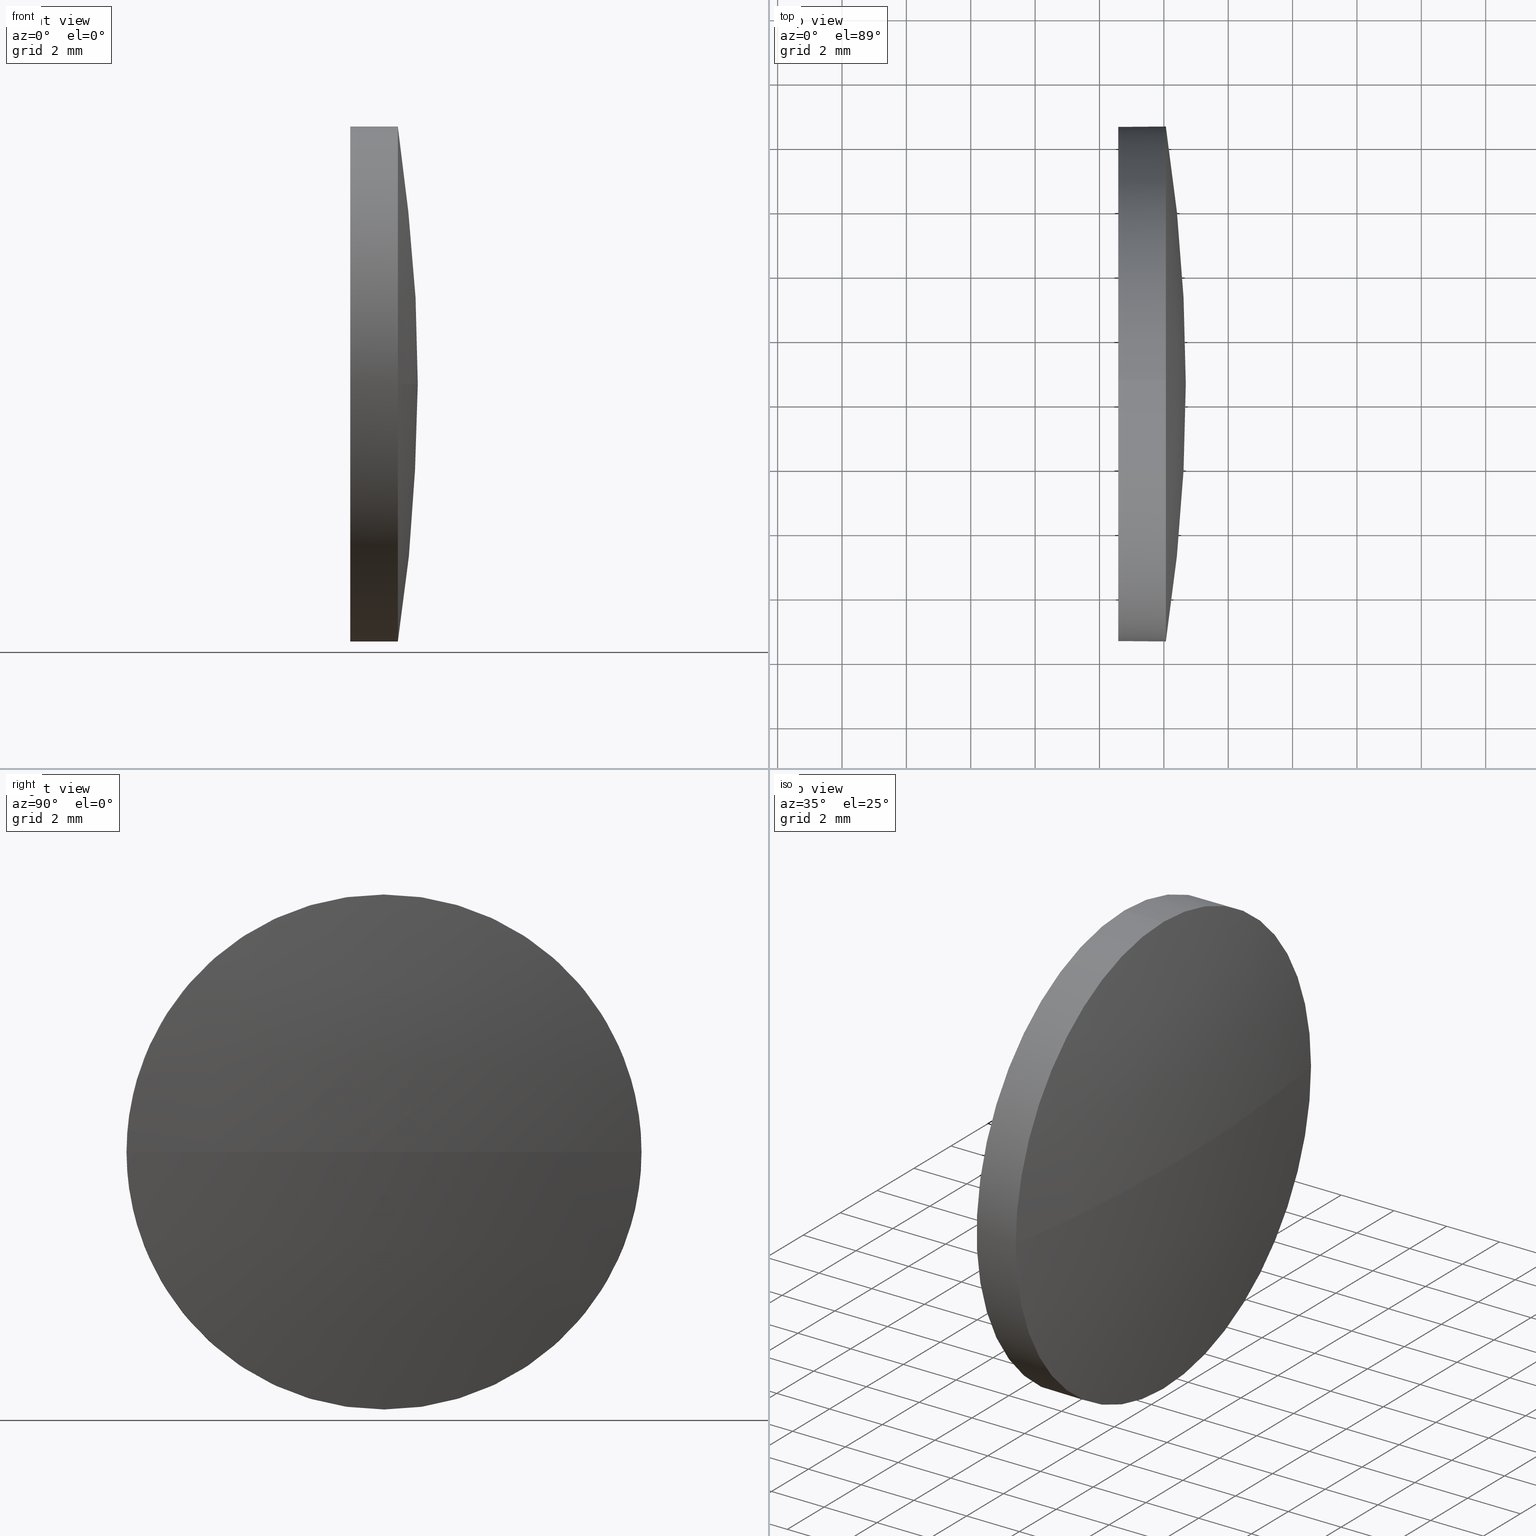
[diagram: canonical four-view strip — front | top / right | iso, engineering-drawing reading convention]
A machine part, canonical four-view strip (front | top / right | iso — engineering-drawing reading convention). The complete STEP part file that produces these views, byte-faithful:
ISO-10303-21;
HEADER;
FILE_DESCRIPTION (( 'STEP AP214' ),
    '1' );
FILE_NAME ('100204.STEP',
    '2019-05-22T07:34:56',
    ( '' ),
    ( '' ),
    'SwSTEP 2.0',
    'SolidWorks 2016',
    '' );
FILE_SCHEMA (( 'AUTOMOTIVE_DESIGN' ));
ENDSEC;

DATA;
#1 =( NAMED_UNIT ( * ) SI_UNIT ( $, .STERADIAN. ) SOLID_ANGLE_UNIT ( ) );
#2 = AXIS2_PLACEMENT_3D ( 'NONE', #72, #83, #22 ) ;
#3 = CARTESIAN_POINT ( 'NONE',  ( 410.7592352837468800, 156.5683746678373000, 0.0000000000000000000 ) ) ;
#4 = EDGE_LOOP ( 'NONE', ( #104, #123, #32, #55, #110 ) ) ;
#5 =( NAMED_UNIT ( * ) PLANE_ANGLE_UNIT ( ) SI_UNIT ( $, .RADIAN. ) );
#6 = LINE ( 'NONE', #92, #36 ) ;
#7 = CARTESIAN_POINT ( 'NONE',  ( 462.0621385095531700, 148.5683746678372800, -9.797174393178857200E-016 ) ) ;
#8 = CARTESIAN_POINT ( 'NONE',  ( 462.6821385095531700, 156.5683746678373000, 0.0000000000000000000 ) ) ;
#9 = CIRCLE ( 'NONE', #56, 8.000000000000007100 ) ;
#10 = VERTEX_POINT ( 'NONE', #7 ) ;
#11 = DIRECTION ( 'NONE',  ( -1.000000000000000000, -0.0000000000000000000, -0.0000000000000000000 ) ) ;
#12 = CARTESIAN_POINT ( 'NONE',  ( 458.9341660365616900, 156.5683746678373000, 0.0000000000000000000 ) ) ;
#13 = CARTESIAN_POINT ( 'NONE',  ( 462.0621385095531700, 156.5683746678373000, 0.0000000000000000000 ) ) ;
#14 = MANIFOLD_SOLID_BREP ( '��ת1', #43 ) ;
#15 = AXIS2_PLACEMENT_3D ( 'NONE', #3, #33, #47 ) ;
#16 = SPHERICAL_SURFACE ( 'NONE', #178, 51.92290322580633700 ) ;
#17 = PRODUCT_DEFINITION_CONTEXT ( 'detailed design', #127, 'design' ) ;
#18 = APPLICATION_PROTOCOL_DEFINITION ( 'draft international standard', 'automotive_design', 1998, #171 ) ;
#19 =( LENGTH_UNIT ( ) NAMED_UNIT ( * ) SI_UNIT ( .MILLI., .METRE. ) );
#20 = ORIENTED_EDGE ( 'NONE', *, *, #142, .T. ) ;
#21 = PRODUCT_CONTEXT ( 'NONE', #171, 'mechanical' ) ;
#22 = DIRECTION ( 'NONE',  ( 0.0000000000000000000, 0.0000000000000000000, 1.000000000000000000 ) ) ;
#23 = DIRECTION ( 'NONE',  ( 0.0000000000000000000, 1.224646799147353200E-016, -1.000000000000000000 ) ) ;
#24 = VERTEX_POINT ( 'NONE', #8 ) ;
#25 = CARTESIAN_POINT ( 'NONE',  ( 458.9341660365616900, 156.5683746678373000, 0.0000000000000000000 ) ) ;
#26 = ADVANCED_FACE ( 'NONE', ( #102 ), #162, .T. ) ;
#27 = PRODUCT ( '100204', '100204', '', ( #21 ) ) ;
#28 = DIRECTION ( 'NONE',  ( -0.0000000000000000000, 0.0000000000000000000, -1.000000000000000000 ) ) ;
#29 = EDGE_CURVE ( 'NONE', #176, #143, #70, .T. ) ;
#30 = PRODUCT_RELATED_PRODUCT_CATEGORY ( 'part', '', ( #27 ) ) ;
#31 = PRESENTATION_LAYER_ASSIGNMENT (  '', '', ( #106 ) ) ;
#32 = ORIENTED_EDGE ( 'NONE', *, *, #142, .F. ) ;
#33 = DIRECTION ( 'NONE',  ( -0.0000000000000000000, 0.0000000000000000000, 1.000000000000000000 ) ) ;
#34 = SURFACE_STYLE_USAGE ( .BOTH. , #114 ) ;
#35 = VERTEX_POINT ( 'NONE', #181 ) ;
#36 = VECTOR ( 'NONE', #71, 1000.000000000000000 ) ;
#37 = AXIS2_PLACEMENT_3D ( 'NONE', #25, #48, #155 ) ;
#38 = CARTESIAN_POINT ( 'NONE',  ( 460.5821385095532000, 156.5683746678373000, 0.0000000000000000000 ) ) ;
#39 = DIRECTION ( 'NONE',  ( 0.0000000000000000000, 1.000000000000000000, 0.0000000000000000000 ) ) ;
#40 = CIRCLE ( 'NONE', #137, 8.000000000000007100 ) ;
#41 = CIRCLE ( 'NONE', #93, 8.000000000000007100 ) ;
#42 = FACE_OUTER_BOUND ( 'NONE', #185, .T. ) ;
#43 = CLOSED_SHELL ( 'NONE', ( #26, #119, #138, #81, #97 ) ) ;
#44 = SHAPE_DEFINITION_REPRESENTATION ( #80, #77 ) ;
#45 = DIRECTION ( 'NONE',  ( 0.0000000000000000000, 1.000000000000000000, 1.224646799147353200E-016 ) ) ;
#46 = CYLINDRICAL_SURFACE ( 'NONE', #103, 8.000000000000007100 ) ;
#47 = DIRECTION ( 'NONE',  ( 1.000000000000000000, 0.0000000000000000000, 0.0000000000000000000 ) ) ;
#48 = DIRECTION ( 'NONE',  ( -1.000000000000000000, -0.0000000000000000000, -0.0000000000000000000 ) ) ;
#49 = MECHANICAL_DESIGN_GEOMETRIC_PRESENTATION_REPRESENTATION (  '', ( #106 ), #109 ) ;
#50 = FACE_OUTER_BOUND ( 'NONE', #129, .T. ) ;
#51 = DIRECTION ( 'NONE',  ( 0.0000000000000000000, 0.0000000000000000000, 1.000000000000000000 ) ) ;
#52 = CARTESIAN_POINT ( 'NONE',  ( 460.5821385095532000, 156.5683746678373000, 8.000000000000007100 ) ) ;
#53 = MECHANICAL_DESIGN_GEOMETRIC_PRESENTATION_REPRESENTATION (  '', ( #169 ), #154 ) ;
#54 = PRESENTATION_STYLE_ASSIGNMENT (( #34 ) ) ;
#55 = ORIENTED_EDGE ( 'NONE', *, *, #175, .F. ) ;
#56 = AXIS2_PLACEMENT_3D ( 'NONE', #141, #11, #51 ) ;
#57 = ORIENTED_EDGE ( 'NONE', *, *, #29, .F. ) ;
#58 = ORIENTED_EDGE ( 'NONE', *, *, #175, .T. ) ;
#59 = DIRECTION ( 'NONE',  ( 1.000000000000000000, 0.0000000000000000000, 0.0000000000000000000 ) ) ;
#60 = DIRECTION ( 'NONE',  ( 0.0000000000000000000, 0.0000000000000000000, 1.000000000000000000 ) ) ;
#61 = SURFACE_STYLE_USAGE ( .BOTH. , #130 ) ;
#62 = ORIENTED_EDGE ( 'NONE', *, *, #160, .F. ) ;
#63 = COLOUR_RGB ( '',1.000000000000000000, 1.000000000000000000, 1.000000000000000000 ) ;
#64 = EDGE_CURVE ( 'NONE', #143, #158, #40, .T. ) ;
#65 = ORIENTED_EDGE ( 'NONE', *, *, #128, .T. ) ;
#66 = DIRECTION ( 'NONE',  ( -1.000000000000000000, -0.0000000000000000000, -0.0000000000000000000 ) ) ;
#67 = DIRECTION ( 'NONE',  ( 0.0000000000000000000, 0.0000000000000000000, 1.000000000000000000 ) ) ;
#68 = PRESENTATION_LAYER_ASSIGNMENT (  '', '', ( #169 ) ) ;
#69 = ORIENTED_EDGE ( 'NONE', *, *, #128, .F. ) ;
#70 = LINE ( 'NONE', #168, #164 ) ;
#71 = DIRECTION ( 'NONE',  ( -1.000000000000000000, -0.0000000000000000000, -0.0000000000000000000 ) ) ;
#72 = CARTESIAN_POINT ( 'NONE',  ( 460.5821385095532000, 156.5683746678373000, 0.0000000000000000000 ) ) ;
#73 = DIRECTION ( 'NONE',  ( 0.0000000000000000000, 0.0000000000000000000, 1.000000000000000000 ) ) ;
#74 = CARTESIAN_POINT ( 'NONE',  ( 462.0621385095531700, 156.5683746678373000, 0.0000000000000000000 ) ) ;
#75 = ORIENTED_EDGE ( 'NONE', *, *, #87, .F. ) ;
#76 = DIRECTION ( 'NONE',  ( 0.0000000000000000000, 1.000000000000000000, 0.0000000000000000000 ) ) ;
#77 = ADVANCED_BREP_SHAPE_REPRESENTATION ( '100204', ( #14, #124 ), #133 ) ;
#78 = ORIENTED_EDGE ( 'NONE', *, *, #132, .F. ) ;
#79 = DIRECTION ( 'NONE',  ( 0.0000000000000000000, 0.0000000000000000000, 1.000000000000000000 ) ) ;
#80 = PRODUCT_DEFINITION_SHAPE ( 'NONE', 'NONE',  #167 ) ;
#81 = ADVANCED_FACE ( 'NONE', ( #116 ), #46, .T. ) ;
#82 = PLANE ( 'NONE',  #140 ) ;
#83 = DIRECTION ( 'NONE',  ( -1.000000000000000000, -0.0000000000000000000, -0.0000000000000000000 ) ) ;
#84 = CIRCLE ( 'NONE', #86, 51.92290322580633700 ) ;
#85 = COLOUR_RGB ( '',1.000000000000000000, 1.000000000000000000, 1.000000000000000000 ) ;
#86 = AXIS2_PLACEMENT_3D ( 'NONE', #165, #23, #45 ) ;
#87 = EDGE_CURVE ( 'NONE', #10, #35, #41, .T. ) ;
#88 = CARTESIAN_POINT ( 'NONE',  ( 410.7592352837468800, 156.5683746678373000, 0.0000000000000000000 ) ) ;
#89 = DIRECTION ( 'NONE',  ( -1.000000000000000000, -0.0000000000000000000, -0.0000000000000000000 ) ) ;
#90 = ORIENTED_EDGE ( 'NONE', *, *, #153, .F. ) ;
#91 = EDGE_LOOP ( 'NONE', ( #78, #105, #69, #90 ) ) ;
#92 = CARTESIAN_POINT ( 'NONE',  ( 458.9341660365616900, 156.5683746678373000, 8.000000000000007100 ) ) ;
#93 = AXIS2_PLACEMENT_3D ( 'NONE', #182, #121, #139 ) ;
#94 = UNCERTAINTY_MEASURE_WITH_UNIT (LENGTH_MEASURE( 1.000000000000000100E-005 ), #19, 'distance_accuracy_value', 'NONE');
#95 = FILL_AREA_STYLE_COLOUR ( '', #85 ) ;
#96 = FILL_AREA_STYLE ('',( #95 ) ) ;
#97 = ADVANCED_FACE ( 'NONE', ( #50 ), #82, .F. ) ;
#98 = SURFACE_STYLE_FILL_AREA ( #96 ) ;
#99 = VERTEX_POINT ( 'NONE', #100 ) ;
#100 = CARTESIAN_POINT ( 'NONE',  ( 462.0621385095531700, 164.5683746678373000, 0.0000000000000000000 ) ) ;
#101 = CARTESIAN_POINT ( 'NONE',  ( 460.5821385095532000, 156.5683746678373000, 0.0000000000000000000 ) ) ;
#102 = FACE_OUTER_BOUND ( 'NONE', #4, .T. ) ;
#103 = AXIS2_PLACEMENT_3D ( 'NONE', #12, #66, #67 ) ;
#104 = ORIENTED_EDGE ( 'NONE', *, *, #153, .T. ) ;
#105 = ORIENTED_EDGE ( 'NONE', *, *, #160, .T. ) ;
#106 = STYLED_ITEM ( 'NONE', ( #54 ), #14 ) ;
#107 = ORIENTED_EDGE ( 'NONE', *, *, #113, .F. ) ;
#108 = APPLICATION_PROTOCOL_DEFINITION ( 'draft international standard', 'automotive_design', 1998, #127 ) ;
#109 =( GEOMETRIC_REPRESENTATION_CONTEXT ( 3 ) GLOBAL_UNCERTAINTY_ASSIGNED_CONTEXT ( ( #159 ) ) GLOBAL_UNIT_ASSIGNED_CONTEXT ( ( #180, #135, #118 ) ) REPRESENTATION_CONTEXT ( 'NONE', 'WORKASPACE' ) );
#110 = ORIENTED_EDGE ( 'NONE', *, *, #113, .T. ) ;
#111 = CARTESIAN_POINT ( 'NONE',  ( 410.7592352837468800, 156.5683746678373000, 0.0000000000000000000 ) ) ;
#112 = ORIENTED_EDGE ( 'NONE', *, *, #87, .T. ) ;
#113 = EDGE_CURVE ( 'NONE', #35, #99, #9, .T. ) ;
#114 = SURFACE_SIDE_STYLE ('',( #98 ) ) ;
#115 = AXIS2_PLACEMENT_3D ( 'NONE', #13, #151, #60 ) ;
#116 = FACE_OUTER_BOUND ( 'NONE', #147, .T. ) ;
#117 = ORIENTED_EDGE ( 'NONE', *, *, #64, .F. ) ;
#118 =( NAMED_UNIT ( * ) SI_UNIT ( $, .STERADIAN. ) SOLID_ANGLE_UNIT ( ) );
#119 = ADVANCED_FACE ( 'NONE', ( #183 ), #16, .T. ) ;
#120 = UNCERTAINTY_MEASURE_WITH_UNIT (LENGTH_MEASURE( 1.000000000000000100E-005 ), #145, 'distance_accuracy_value', 'NONE');
#121 = DIRECTION ( 'NONE',  ( -1.000000000000000000, -0.0000000000000000000, -0.0000000000000000000 ) ) ;
#122 = AXIS2_PLACEMENT_3D ( 'NONE', #74, #179, #150 ) ;
#123 = ORIENTED_EDGE ( 'NONE', *, *, #29, .T. ) ;
#124 = AXIS2_PLACEMENT_3D ( 'NONE', #161, #73, #59 ) ;
#125 = CIRCLE ( 'NONE', #115, 8.000000000000007100 ) ;
#126 = CIRCLE ( 'NONE', #15, 51.92290322580633700 ) ;
#127 = APPLICATION_CONTEXT ( 'automotive_design' ) ;
#128 = EDGE_CURVE ( 'NONE', #176, #10, #125, .T. ) ;
#129 = EDGE_LOOP ( 'NONE', ( #20, #136 ) ) ;
#130 = SURFACE_SIDE_STYLE ('',( #149 ) ) ;
#131 = DIRECTION ( 'NONE',  ( -0.0000000000000000000, 0.0000000000000000000, -1.000000000000000000 ) ) ;
#132 = EDGE_CURVE ( 'NONE', #24, #99, #126, .T. ) ;
#133 =( GEOMETRIC_REPRESENTATION_CONTEXT ( 3 ) GLOBAL_UNCERTAINTY_ASSIGNED_CONTEXT ( ( #120 ) ) GLOBAL_UNIT_ASSIGNED_CONTEXT ( ( #145, #174, #1 ) ) REPRESENTATION_CONTEXT ( 'NONE', 'WORKASPACE' ) );
#134 = CIRCLE ( 'NONE', #122, 8.000000000000007100 ) ;
#135 =( NAMED_UNIT ( * ) PLANE_ANGLE_UNIT ( ) SI_UNIT ( $, .RADIAN. ) );
#136 = ORIENTED_EDGE ( 'NONE', *, *, #64, .T. ) ;
#137 = AXIS2_PLACEMENT_3D ( 'NONE', #38, #89, #79 ) ;
#138 = ADVANCED_FACE ( 'NONE', ( #42 ), #177, .T. ) ;
#139 = DIRECTION ( 'NONE',  ( 0.0000000000000000000, 0.0000000000000000000, 1.000000000000000000 ) ) ;
#140 = AXIS2_PLACEMENT_3D ( 'NONE', #101, #166, #156 ) ;
#141 = CARTESIAN_POINT ( 'NONE',  ( 462.0621385095531700, 156.5683746678373000, 0.0000000000000000000 ) ) ;
#142 = EDGE_CURVE ( 'NONE', #158, #143, #184, .T. ) ;
#143 = VERTEX_POINT ( 'NONE', #163 ) ;
#144 =( NAMED_UNIT ( * ) SI_UNIT ( $, .STERADIAN. ) SOLID_ANGLE_UNIT ( ) );
#145 =( LENGTH_UNIT ( ) NAMED_UNIT ( * ) SI_UNIT ( .MILLI., .METRE. ) );
#146 = CARTESIAN_POINT ( 'NONE',  ( 462.0621385095531700, 156.5683746678373000, -8.000000000000007100 ) ) ;
#147 = EDGE_LOOP ( 'NONE', ( #57, #65, #112, #58, #117 ) ) ;
#148 = FILL_AREA_STYLE ('',( #172 ) ) ;
#149 = SURFACE_STYLE_FILL_AREA ( #148 ) ;
#150 = DIRECTION ( 'NONE',  ( 0.0000000000000000000, 0.0000000000000000000, 1.000000000000000000 ) ) ;
#151 = DIRECTION ( 'NONE',  ( -1.000000000000000000, -0.0000000000000000000, -0.0000000000000000000 ) ) ;
#152 = AXIS2_PLACEMENT_3D ( 'NONE', #111, #131, #76 ) ;
#153 = EDGE_CURVE ( 'NONE', #99, #176, #134, .T. ) ;
#154 =( GEOMETRIC_REPRESENTATION_CONTEXT ( 3 ) GLOBAL_UNCERTAINTY_ASSIGNED_CONTEXT ( ( #94 ) ) GLOBAL_UNIT_ASSIGNED_CONTEXT ( ( #19, #5, #144 ) ) REPRESENTATION_CONTEXT ( 'NONE', 'WORKASPACE' ) );
#155 = DIRECTION ( 'NONE',  ( 0.0000000000000000000, 0.0000000000000000000, 1.000000000000000000 ) ) ;
#156 = DIRECTION ( 'NONE',  ( 0.0000000000000000000, 0.0000000000000000000, -1.000000000000000000 ) ) ;
#157 = DIRECTION ( 'NONE',  ( -1.000000000000000000, -0.0000000000000000000, -0.0000000000000000000 ) ) ;
#158 = VERTEX_POINT ( 'NONE', #52 ) ;
#159 = UNCERTAINTY_MEASURE_WITH_UNIT (LENGTH_MEASURE( 1.000000000000000100E-005 ), #180, 'distance_accuracy_value', 'NONE');
#160 = EDGE_CURVE ( 'NONE', #24, #10, #84, .T. ) ;
#161 = CARTESIAN_POINT ( 'NONE',  ( 0.0000000000000000000, 0.0000000000000000000, 0.0000000000000000000 ) ) ;
#162 = CYLINDRICAL_SURFACE ( 'NONE', #37, 8.000000000000007100 ) ;
#163 = CARTESIAN_POINT ( 'NONE',  ( 460.5821385095532000, 156.5683746678373000, -8.000000000000007100 ) ) ;
#164 = VECTOR ( 'NONE', #157, 1000.000000000000000 ) ;
#165 = CARTESIAN_POINT ( 'NONE',  ( 410.7592352837468800, 156.5683746678373000, 0.0000000000000000000 ) ) ;
#166 = DIRECTION ( 'NONE',  ( 1.000000000000000000, 0.0000000000000000000, 0.0000000000000000000 ) ) ;
#167 = PRODUCT_DEFINITION ( 'δ֪', '', #186, #17 ) ;
#168 = CARTESIAN_POINT ( 'NONE',  ( 458.9341660365616900, 156.5683746678373000, -8.000000000000007100 ) ) ;
#169 = STYLED_ITEM ( 'NONE', ( #170 ), #77 ) ;
#170 = PRESENTATION_STYLE_ASSIGNMENT (( #61 ) ) ;
#171 = APPLICATION_CONTEXT ( 'automotive_design' ) ;
#172 = FILL_AREA_STYLE_COLOUR ( '', #63 ) ;
#173 = ORIENTED_EDGE ( 'NONE', *, *, #132, .T. ) ;
#174 =( NAMED_UNIT ( * ) PLANE_ANGLE_UNIT ( ) SI_UNIT ( $, .RADIAN. ) );
#175 = EDGE_CURVE ( 'NONE', #35, #158, #6, .T. ) ;
#176 = VERTEX_POINT ( 'NONE', #146 ) ;
#177 = SPHERICAL_SURFACE ( 'NONE', #152, 51.92290322580633700 ) ;
#178 = AXIS2_PLACEMENT_3D ( 'NONE', #88, #28, #39 ) ;
#179 = DIRECTION ( 'NONE',  ( -1.000000000000000000, -0.0000000000000000000, -0.0000000000000000000 ) ) ;
#180 =( LENGTH_UNIT ( ) NAMED_UNIT ( * ) SI_UNIT ( .MILLI., .METRE. ) );
#181 = CARTESIAN_POINT ( 'NONE',  ( 462.0621385095531700, 156.5683746678373000, 8.000000000000007100 ) ) ;
#182 = CARTESIAN_POINT ( 'NONE',  ( 462.0621385095531700, 156.5683746678373000, 0.0000000000000000000 ) ) ;
#183 = FACE_OUTER_BOUND ( 'NONE', #91, .T. ) ;
#184 = CIRCLE ( 'NONE', #2, 8.000000000000007100 ) ;
#185 = EDGE_LOOP ( 'NONE', ( #62, #173, #107, #75 ) ) ;
#186 = PRODUCT_DEFINITION_FORMATION_WITH_SPECIFIED_SOURCE ( '�κ�', '', #27, .NOT_KNOWN. ) ;
ENDSEC;
END-ISO-10303-21;
